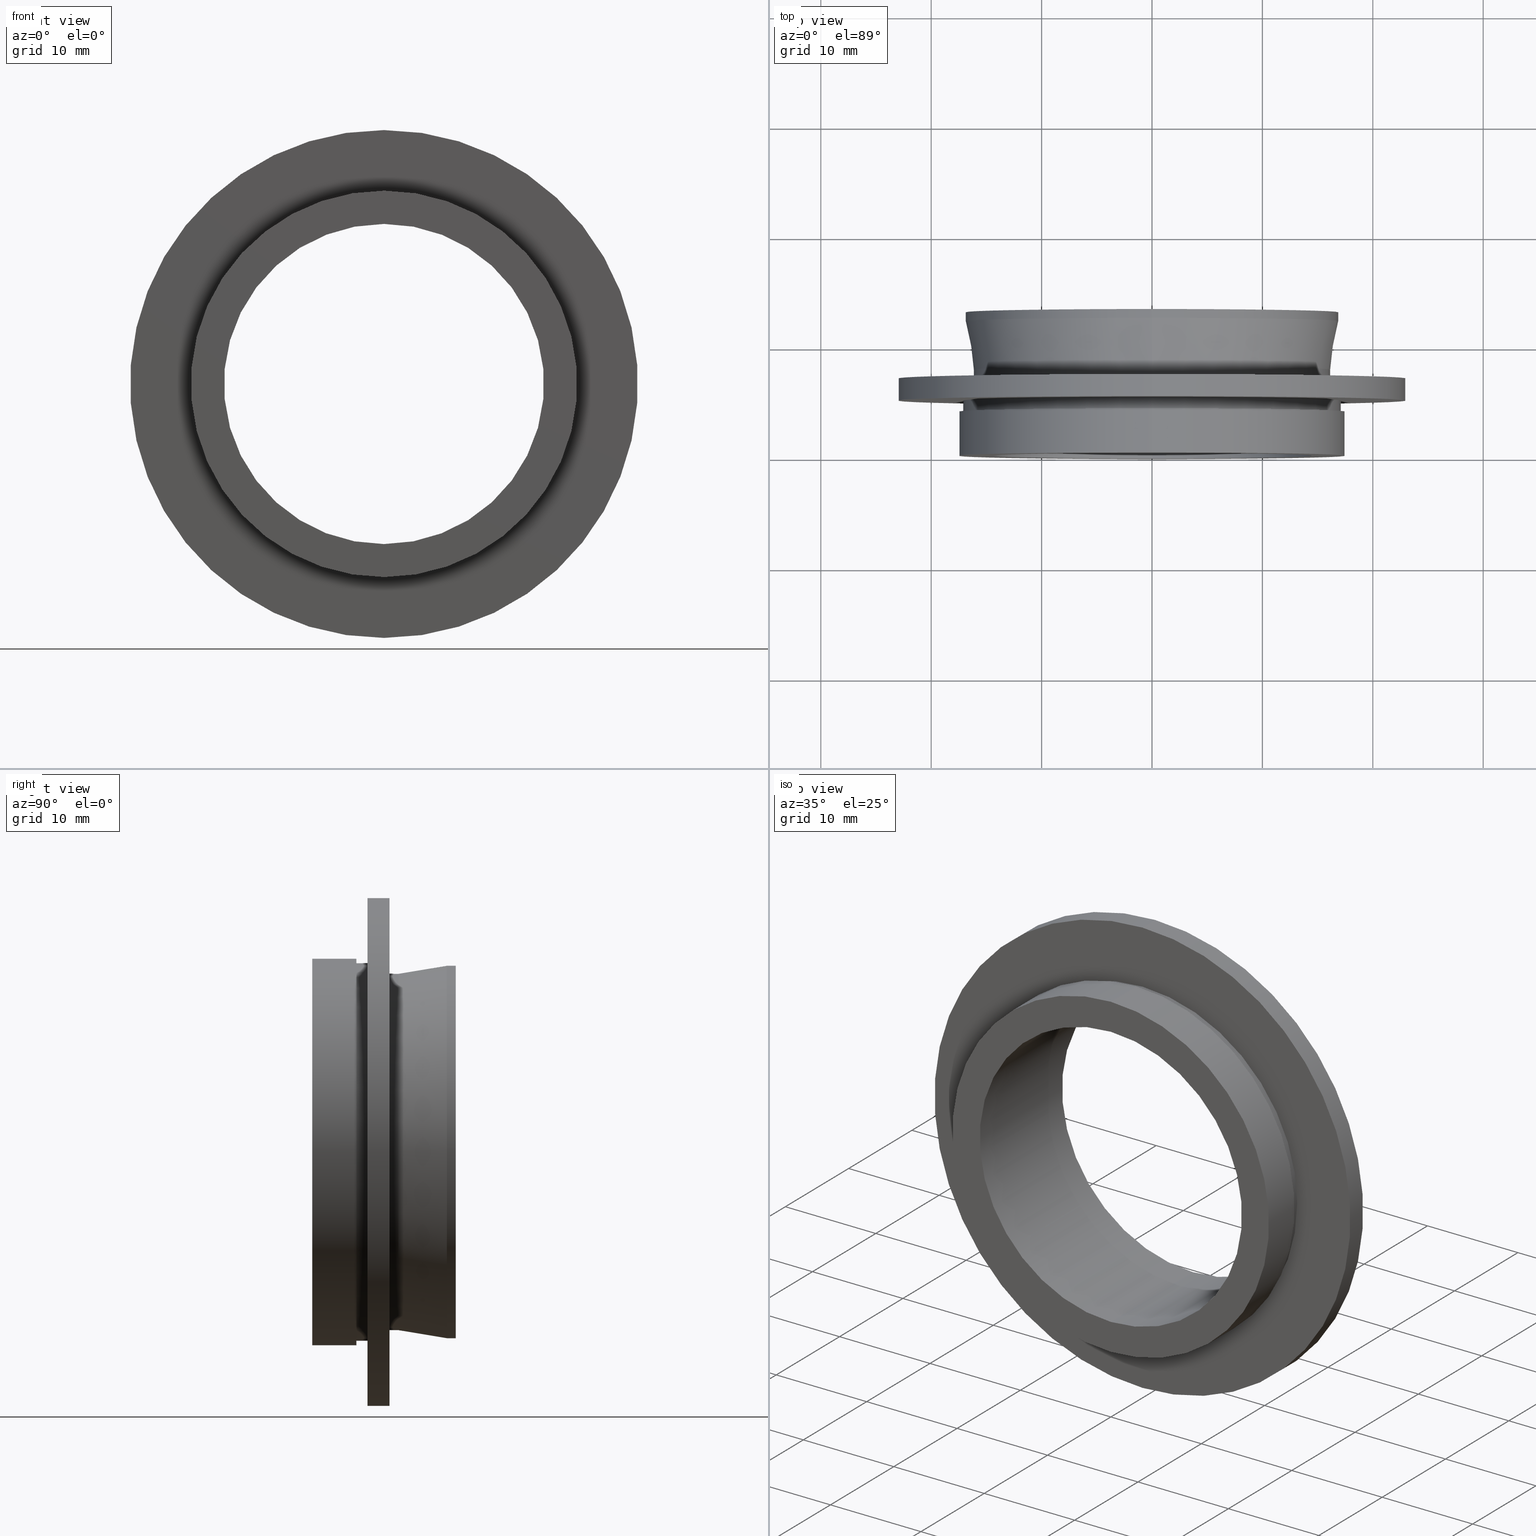
[diagram: canonical four-view strip — front | top / right | iso, engineering-drawing reading convention]
A machine part, canonical four-view strip (front | top / right | iso — engineering-drawing reading convention). The complete STEP part file that produces these views, byte-faithful:
ISO-10303-21;
HEADER;
FILE_DESCRIPTION (( 'STEP AP203' ),
    '1' );
FILE_NAME ('510010.STEP',
    '2019-09-29T08:11:34',
    ( '' ),
    ( '' ),
    'SwSTEP 2.0',
    'SolidWorks 2016',
    '' );
FILE_SCHEMA (( 'CONFIG_CONTROL_DESIGN' ));
ENDSEC;

DATA;
#1 = DIRECTION ( 'NONE',  ( -0.0000000000000000000, -1.000000000000000000, -0.0000000000000000000 ) ) ;
#2 = CC_DESIGN_PERSON_AND_ORGANIZATION_ASSIGNMENT ( #123, #324, ( #606 ) ) ;
#3 = CALENDAR_DATE ( 2019, 29, 9 ) ;
#4 = CARTESIAN_POINT ( 'NONE',  ( 2.094146026541974000E-015, 0.0000000000000000000, 17.10000000000000100 ) ) ;
#5 = FACE_BOUND ( 'NONE', #437, .T. ) ;
#6 = VECTOR ( 'NONE', #599, 1000.000000000000000 ) ;
#7 = CARTESIAN_POINT ( 'NONE',  ( 0.0000000000000000000, 0.0000000000000000000, 0.0000000000000000000 ) ) ;
#8 = ORIENTED_EDGE ( 'NONE', *, *, #64, .F. ) ;
#9 = CARTESIAN_POINT ( 'NONE',  ( 0.0000000000000000000, 13.00000000000000000, -14.49999999999999800 ) ) ;
#10 = AXIS2_PLACEMENT_3D ( 'NONE', #488, #79, #645 ) ;
#11 = CARTESIAN_POINT ( 'NONE',  ( 0.0000000000000000000, 7.799999999999998900, 0.0000000000000000000 ) ) ;
#12 = DIRECTION ( 'NONE',  ( 0.0000000000000000000, 0.0000000000000000000, 1.000000000000000000 ) ) ;
#13 = DIRECTION ( 'NONE',  ( -0.0000000000000000000, -1.000000000000000000, -0.0000000000000000000 ) ) ;
#14 = PERSON_AND_ORGANIZATION ( #153, #297 ) ;
#15 = FACE_BOUND ( 'NONE', #609, .T. ) ;
#16 = VERTEX_POINT ( 'NONE', #9 ) ;
#17 = ORIENTED_EDGE ( 'NONE', *, *, #64, .T. ) ;
#18 = PERSON_AND_ORGANIZATION_ROLE ( 'classification_officer' ) ;
#19 = CARTESIAN_POINT ( 'NONE',  ( 1.975967610424255000E-015, 6.999999999999998200, 16.13500000000000500 ) ) ;
#20 = ADVANCED_FACE ( 'NONE', ( #329 ), #107, .T. ) ;
#21 = DIRECTION ( 'NONE',  ( 1.000000000000000000, 0.0000000000000000000, 0.0000000000000000000 ) ) ;
#22 = ADVANCED_FACE ( 'NONE', ( #349 ), #448, .T. ) ;
#23 = AXIS2_PLACEMENT_3D ( 'NONE', #327, #277, #279 ) ;
#24 = CARTESIAN_POINT ( 'NONE',  ( 0.0000000000000000000, 0.0000000000000000000, 0.0000000000000000000 ) ) ;
#25 = CALENDAR_DATE ( 2019, 29, 9 ) ;
#26 = LINE ( 'NONE', #561, #70 ) ;
#27 = DIRECTION ( 'NONE',  ( -0.0000000000000000000, -1.000000000000000000, -0.0000000000000000000 ) ) ;
#28 = ORIENTED_EDGE ( 'NONE', *, *, #476, .F. ) ;
#29 = ADVANCED_FACE ( 'NONE', ( #321 ), #587, .T. ) ;
#30 = CC_DESIGN_PERSON_AND_ORGANIZATION_ASSIGNMENT ( #52, #589, ( #534 ) ) ;
#31 = AXIS2_PLACEMENT_3D ( 'NONE', #266, #631, #159 ) ;
#32 = DIRECTION ( 'NONE',  ( 0.0000000000000000000, 0.0000000000000000000, -1.000000000000000000 ) ) ;
#33 = VECTOR ( 'NONE', #1, 1000.000000000000000 ) ;
#34 = EDGE_LOOP ( 'NONE', ( #492, #298, #557, #583 ) ) ;
#35 = ORIENTED_EDGE ( 'NONE', *, *, #304, .F. ) ;
#36 = DIRECTION ( 'NONE',  ( -0.0000000000000000000, -1.000000000000000000, -0.0000000000000000000 ) ) ;
#37 = PERSON_AND_ORGANIZATION ( #153, #297 ) ;
#38 = CC_DESIGN_DATE_AND_TIME_ASSIGNMENT ( #151, #540, ( #620 ) ) ;
#39 = DIRECTION ( 'NONE',  ( 0.0000000000000000000, 0.0000000000000000000, -1.000000000000000000 ) ) ;
#40 = ORIENTED_EDGE ( 'NONE', *, *, #549, .F. ) ;
#41 = ORIENTED_EDGE ( 'NONE', *, *, #342, .F. ) ;
#42 = DIRECTION ( 'NONE',  ( -0.0000000000000000000, -1.000000000000000000, -0.0000000000000000000 ) ) ;
#43 = EDGE_CURVE ( 'NONE', #48, #163, #475, .T. ) ;
#44 = CARTESIAN_POINT ( 'NONE',  ( 2.816687638038912400E-015, 4.999999999999997300, 23.00000000000000000 ) ) ;
#45 = PLANE ( 'NONE',  #174 ) ;
#46 = EDGE_CURVE ( 'NONE', #118, #142, #406, .T. ) ;
#47 = FACE_OUTER_BOUND ( 'NONE', #528, .T. ) ;
#48 = VERTEX_POINT ( 'NONE', #352 ) ;
#49 = DIRECTION ( 'NONE',  ( -0.0000000000000000000, -1.000000000000000000, -0.0000000000000000000 ) ) ;
#50 = VERTEX_POINT ( 'NONE', #220 ) ;
#51 = DIRECTION ( 'NONE',  ( 0.0000000000000000000, 0.0000000000000000000, -1.000000000000000000 ) ) ;
#52 = PERSON_AND_ORGANIZATION ( #153, #297 ) ;
#53 = DIRECTION ( 'NONE',  ( 0.0000000000000000000, 0.0000000000000000000, -1.000000000000000000 ) ) ;
#54 = EDGE_LOOP ( 'NONE', ( #477, #109, #615, #193 ) ) ;
#55 = AXIS2_PLACEMENT_3D ( 'NONE', #591, #633, #219 ) ;
#56 = ORIENTED_EDGE ( 'NONE', *, *, #304, .T. ) ;
#57 = DIRECTION ( 'NONE',  ( -0.0000000000000000000, -1.000000000000000000, -0.0000000000000000000 ) ) ;
#58 = CC_DESIGN_PERSON_AND_ORGANIZATION_ASSIGNMENT ( #37, #621, ( #148 ) ) ;
#59 = DIRECTION ( 'NONE',  ( 0.0000000000000000000, -1.000000000000000000, -0.0000000000000000000 ) ) ;
#60 = CIRCLE ( 'NONE', #267, 17.10000000000000100 ) ;
#61 = DATE_TIME_ROLE ( 'creation_date' ) ;
#62 = ORIENTED_EDGE ( 'NONE', *, *, #652, .F. ) ;
#63 = ORIENTED_EDGE ( 'NONE', *, *, #198, .T. ) ;
#64 = EDGE_CURVE ( 'NONE', #348, #50, #622, .T. ) ;
#65 = PLANE ( 'NONE',  #372 ) ;
#66 = ADVANCED_FACE ( 'NONE', ( #233 ), #336, .T. ) ;
#67 = DIRECTION ( 'NONE',  ( 0.0000000000000000000, 0.0000000000000000000, -1.000000000000000000 ) ) ;
#68 = CALENDAR_DATE ( 2019, 29, 9 ) ;
#69 = CARTESIAN_POINT ( 'NONE',  ( 0.0000000000000000000, 3.999999999999997300, 0.0000000000000000000 ) ) ;
#70 = VECTOR ( 'NONE', #291, 1000.000000000000000 ) ;
#71 = ORIENTED_EDGE ( 'NONE', *, *, #263, .T. ) ;
#72 = PRODUCT_RELATED_PRODUCT_CATEGORY ( 'detail', '', ( #148 ) ) ;
#73 = AXIS2_PLACEMENT_3D ( 'NONE', #533, #637, #365 ) ;
#74 = CARTESIAN_POINT ( 'NONE',  ( 0.0000000000000000000, -3.508329487826542300E-015, 0.0000000000000000000 ) ) ;
#75 = CARTESIAN_POINT ( 'NONE',  ( 0.0000000000000000000, 3.999999999999998200, -17.10000000000000100 ) ) ;
#76 = EDGE_LOOP ( 'NONE', ( #41, #126 ) ) ;
#77 = EDGE_CURVE ( 'NONE', #355, #605, #442, .T. ) ;
#78 = ADVANCED_FACE ( 'NONE', ( #656, #90 ), #122, .F. ) ;
#79 = DIRECTION ( 'NONE',  ( 0.0000000000000000000, 1.000000000000000000, 0.0000000000000000000 ) ) ;
#80 = PERSON_AND_ORGANIZATION ( #153, #297 ) ;
#81 = CIRCLE ( 'NONE', #485, 17.50000000000000000 ) ;
#82 = LINE ( 'NONE', #288, #516 ) ;
#83 = ORIENTED_EDGE ( 'NONE', *, *, #431, .T. ) ;
#84 = CARTESIAN_POINT ( 'NONE',  ( 1.775737858763662000E-015, 0.0000000000000000000, 14.49999999999999800 ) ) ;
#85 = AXIS2_PLACEMENT_3D ( 'NONE', #173, #370, #420 ) ;
#86 = CARTESIAN_POINT ( 'NONE',  ( -16.13500000000000500, 6.999999999999997300, 0.0000000000000000000 ) ) ;
#87 = DIRECTION ( 'NONE',  ( 0.0000000000000000000, 1.000000000000000000, 0.0000000000000000000 ) ) ;
#88 = AXIS2_PLACEMENT_3D ( 'NONE', #578, #414, #21 ) ;
#89 = CARTESIAN_POINT ( 'NONE',  ( 0.0000000000000000000, 7.799999999999998900, 16.13500000000001200 ) ) ;
#90 = FACE_OUTER_BOUND ( 'NONE', #102, .T. ) ;
#91 = EDGE_LOOP ( 'NONE', ( #415, #56, #83, #598 ) ) ;
#92 = CARTESIAN_POINT ( 'NONE',  ( 0.0000000000000000000, 0.0000000000000000000, 0.0000000000000000000 ) ) ;
#93 = DESIGN_CONTEXT ( 'detailed design', #307, 'design' ) ;
#94 = EDGE_CURVE ( 'NONE', #666, #118, #640, .T. ) ;
#95 = DIRECTION ( 'NONE',  ( 0.0000000000000000000, 0.0000000000000000000, -1.000000000000000000 ) ) ;
#96 = DIRECTION ( 'NONE',  ( -0.0000000000000000000, -1.000000000000000000, -0.0000000000000000000 ) ) ;
#97 = COORDINATED_UNIVERSAL_TIME_OFFSET ( 8, 0, .AHEAD. ) ;
#98 = EDGE_CURVE ( 'NONE', #286, #16, #482, .T. ) ;
#99 = FACE_OUTER_BOUND ( 'NONE', #54, .T. ) ;
#100 = FACE_OUTER_BOUND ( 'NONE', #614, .T. ) ;
#101 = DIRECTION ( 'NONE',  ( 0.0000000000000000000, 0.0000000000000000000, -1.000000000000000000 ) ) ;
#102 = EDGE_LOOP ( 'NONE', ( #623, #384 ) ) ;
#103 = CARTESIAN_POINT ( 'NONE',  ( 1.775737858763662400E-015, -1.589908991977631700E-015, 14.50000000000000200 ) ) ;
#104 = APPROVAL ( #487, 'δָ��' ) ;
#105 = DIRECTION ( 'NONE',  ( 0.0000000000000000000, 1.000000000000000000, 0.0000000000000000000 ) ) ;
#106 = CYLINDRICAL_SURFACE ( 'NONE', #195, 14.49999999999999800 ) ;
#107 = CONICAL_SURFACE ( 'NONE', #616, 16.86499999999999800, 0.1644114862470237900 ) ;
#108 = ORIENTED_EDGE ( 'NONE', *, *, #245, .F. ) ;
#109 = ORIENTED_EDGE ( 'NONE', *, *, #619, .T. ) ;
#110 = DIRECTION ( 'NONE',  ( 0.0000000000000000000, 0.0000000000000000000, -1.000000000000000000 ) ) ;
#111 = DIRECTION ( 'NONE',  ( 1.000000000000000000, 0.0000000000000000000, 0.0000000000000000000 ) ) ;
#112 = COORDINATED_UNIVERSAL_TIME_OFFSET ( 8, 0, .AHEAD. ) ;
#113 = LOCAL_TIME ( 16, 11, 34.00000000000000000, #145 ) ;
#114 = FACE_OUTER_BOUND ( 'NONE', #548, .T. ) ;
#115 = CARTESIAN_POINT ( 'NONE',  ( 0.0000000000000000000, -3.508329487826542300E-015, -17.50000000000000000 ) ) ;
#116 = FACE_BOUND ( 'NONE', #181, .T. ) ;
#117 = DIRECTION ( 'NONE',  ( -0.0000000000000000000, -1.000000000000000000, -0.0000000000000000000 ) ) ;
#118 = VERTEX_POINT ( 'NONE', #588 ) ;
#119 = PRODUCT_DEFINITION_FORMATION_WITH_SPECIFIED_SOURCE ( '�κ�', '', #253, .NOT_KNOWN. ) ;
#120 = APPLICATION_CONTEXT ( 'configuration controlled 3d designs of mechanical parts and assemblies' ) ;
#121 = AXIS2_PLACEMENT_3D ( 'NONE', #74, #430, #322 ) ;
#122 = PLANE ( 'NONE',  #55 ) ;
#123 = PERSON_AND_ORGANIZATION ( #153, #297 ) ;
#124 = DIRECTION ( 'NONE',  ( -0.0000000000000000000, -1.000000000000000000, -0.0000000000000000000 ) ) ;
#125 = FACE_OUTER_BOUND ( 'NONE', #303, .T. ) ;
#126 = ORIENTED_EDGE ( 'NONE', *, *, #392, .F. ) ;
#127 = CC_DESIGN_PERSON_AND_ORGANIZATION_ASSIGNMENT ( #80, #629, ( #119 ) ) ;
#128 = APPROVAL_ROLE ( '' ) ;
#129 = CARTESIAN_POINT ( 'NONE',  ( 1.775737858763662000E-015, 13.00000000000000000, 14.49999999999999800 ) ) ;
#130 = APPROVAL_ROLE ( '' ) ;
#131 = AXIS2_PLACEMENT_3D ( 'NONE', #479, #535, #317 ) ;
#132 = LINE ( 'NONE', #202, #382 ) ;
#133 = DIRECTION ( 'NONE',  ( 2.004401237060916700E-017, 0.9865148492742908900, -0.1636717818114136200 ) ) ;
#134 = ORIENTED_EDGE ( 'NONE', *, *, #166, .F. ) ;
#135 = DIRECTION ( 'NONE',  ( -0.0000000000000000000, -1.000000000000000000, -0.0000000000000000000 ) ) ;
#136 = DIRECTION ( 'NONE',  ( -0.0000000000000000000, -1.000000000000000000, -0.0000000000000000000 ) ) ;
#137 = PRODUCT_DEFINITION_SHAPE ( 'NONE', 'NONE',  #534 ) ;
#138 = CARTESIAN_POINT ( 'NONE',  ( 0.0000000000000000000, 6.999999999999998200, 0.0000000000000000000 ) ) ;
#139 = LOCAL_TIME ( 16, 11, 34.00000000000000000, #654 ) ;
#140 = CYLINDRICAL_SURFACE ( 'NONE', #427, 16.13500000000000900 ) ;
#141 = CIRCLE ( 'NONE', #152, 17.10000000000000100 ) ;
#142 = VERTEX_POINT ( 'NONE', #541 ) ;
#143 = EDGE_CURVE ( 'NONE', #634, #163, #178, .T. ) ;
#144 = CARTESIAN_POINT ( 'NONE',  ( 0.0000000000000000000, 12.19999999999999900, 0.0000000000000000000 ) ) ;
#145 = COORDINATED_UNIVERSAL_TIME_OFFSET ( 8, 0, .AHEAD. ) ;
#146 = CIRCLE ( 'NONE', #596, 17.10000000000000100 ) ;
#147 = ORIENTED_EDGE ( 'NONE', *, *, #43, .T. ) ;
#148 = PRODUCT ( '510010', '510010', '', ( #262 ) ) ;
#149 = CARTESIAN_POINT ( 'NONE',  ( 0.0000000000000000000, 0.0000000000000000000, -16.13500000000000900 ) ) ;
#150 = DIRECTION ( 'NONE',  ( -0.0000000000000000000, -1.000000000000000000, -0.0000000000000000000 ) ) ;
#151 = DATE_AND_TIME ( #3, #139 ) ;
#152 = AXIS2_PLACEMENT_3D ( 'NONE', #593, #124, #424 ) ;
#153 = PERSON ( 'δָ��', 'δָ��', 'δָ��', ('δָ��'), ('δָ��'), ('δָ��') ) ;
#154 = CYLINDRICAL_SURFACE ( 'NONE', #469, 17.10000000000000100 ) ;
#155 = ORIENTED_EDGE ( 'NONE', *, *, #431, .F. ) ;
#156 = DIRECTION ( 'NONE',  ( -0.0000000000000000000, -1.000000000000000000, -0.0000000000000000000 ) ) ;
#157 = CC_DESIGN_PERSON_AND_ORGANIZATION_ASSIGNMENT ( #311, #520, ( #253 ) ) ;
#158 = CARTESIAN_POINT ( 'NONE',  ( 0.0000000000000000000, 0.0000000000000000000, 0.0000000000000000000 ) ) ;
#159 = DIRECTION ( 'NONE',  ( 0.0000000000000000000, 0.0000000000000000000, -1.000000000000000000 ) ) ;
#160 = APPROVAL_DATE_TIME ( #231, #191 ) ;
#161 = FACE_OUTER_BOUND ( 'NONE', #208, .T. ) ;
#162 = EDGE_CURVE ( 'NONE', #375, #642, #341, .T. ) ;
#163 = VERTEX_POINT ( 'NONE', #169 ) ;
#164 = MECHANICAL_CONTEXT ( 'NONE', #360, 'mechanical' ) ;
#165 = DIRECTION ( 'NONE',  ( -0.0000000000000000000, -1.000000000000000000, -0.0000000000000000000 ) ) ;
#166 = EDGE_CURVE ( 'NONE', #142, #224, #141, .T. ) ;
#167 = DIRECTION ( 'NONE',  ( 0.0000000000000000000, 0.0000000000000000000, -1.000000000000000000 ) ) ;
#168 = APPLICATION_PROTOCOL_DEFINITION ( 'international standard', 'config_control_design', 1994, #360 ) ;
#169 = CARTESIAN_POINT ( 'NONE',  ( 0.0000000000000000000, 12.19999999999999900, -16.86499999999999800 ) ) ;
#170 = EDGE_CURVE ( 'NONE', #657, #458, #425, .T. ) ;
#171 = EDGE_LOOP ( 'NONE', ( #271, #71, #252, #108 ) ) ;
#172 = ORIENTED_EDGE ( 'NONE', *, *, #333, .F. ) ;
#173 = CARTESIAN_POINT ( 'NONE',  ( 0.0000000000000000000, 13.00000000000000000, 0.0000000000000000000 ) ) ;
#174 = AXIS2_PLACEMENT_3D ( 'NONE', #86, #565, #503 ) ;
#175 = DIRECTION ( 'NONE',  ( -0.0000000000000000000, -1.000000000000000000, -0.0000000000000000000 ) ) ;
#176 = APPROVAL_ROLE ( '' ) ;
#177 = APPROVAL_PERSON_ORGANIZATION ( #301, #191, #625 ) ;
#178 = CIRCLE ( 'NONE', #131, 16.86499999999999800 ) ;
#179 = ORIENTED_EDGE ( 'NONE', *, *, #77, .F. ) ;
#180 = EDGE_CURVE ( 'NONE', #499, #357, #312, .T. ) ;
#181 = EDGE_LOOP ( 'NONE', ( #443, #287 ) ) ;
#182 = DIRECTION ( 'NONE',  ( -0.0000000000000000000, -1.000000000000000000, -0.0000000000000000000 ) ) ;
#183 = DIRECTION ( 'NONE',  ( -0.0000000000000000000, -1.000000000000000000, -0.0000000000000000000 ) ) ;
#184 = DATE_AND_TIME ( #525, #319 ) ;
#185 = CIRCLE ( 'NONE', #31, 16.13500000000001200 ) ;
#186 = CARTESIAN_POINT ( 'NONE',  ( 0.0000000000000000000, 12.19999999999999900, 16.86499999999999800 ) ) ;
#187 = VECTOR ( 'NONE', #290, 1000.000000000000100 ) ;
#188 = ORIENTED_EDGE ( 'NONE', *, *, #143, .T. ) ;
#189 = AXIS2_PLACEMENT_3D ( 'NONE', #69, #417, #428 ) ;
#190 = DIRECTION ( 'NONE',  ( 0.0000000000000000000, 0.0000000000000000000, -1.000000000000000000 ) ) ;
#191 = APPROVAL ( #524, 'δָ��' ) ;
#192 = VECTOR ( 'NONE', #57, 1000.000000000000000 ) ;
#193 = ORIENTED_EDGE ( 'NONE', *, *, #356, .F. ) ;
#194 = VERTEX_POINT ( 'NONE', #19 ) ;
#195 = AXIS2_PLACEMENT_3D ( 'NONE', #92, #500, #244 ) ;
#196 = CARTESIAN_POINT ( 'NONE',  ( 0.0000000000000000000, 13.00000000000000000, 0.0000000000000000000 ) ) ;
#197 = CARTESIAN_POINT ( 'NONE',  ( 2.065366826762010800E-015, 12.19999999999999900, 16.86499999999999800 ) ) ;
#198 = EDGE_CURVE ( 'NONE', #50, #348, #538, .T. ) ;
#199 = LOCAL_TIME ( 16, 11, 34.00000000000000000, #639 ) ;
#200 = ORIENTED_EDGE ( 'NONE', *, *, #590, .F. ) ;
#201 = CARTESIAN_POINT ( 'NONE',  ( 0.0000000000000000000, 0.0000000000000000000, -17.50000000000000000 ) ) ;
#202 = CARTESIAN_POINT ( 'NONE',  ( 0.0000000000000000000, 0.0000000000000000000, -14.49999999999999800 ) ) ;
#203 = DIRECTION ( 'NONE',  ( 0.0000000000000000000, 0.0000000000000000000, -1.000000000000000000 ) ) ;
#204 = DIRECTION ( 'NONE',  ( -0.0000000000000000000, -1.000000000000000000, -0.0000000000000000000 ) ) ;
#205 = AXIS2_PLACEMENT_3D ( 'NONE', #471, #117, #167 ) ;
#206 = FACE_OUTER_BOUND ( 'NONE', #299, .T. ) ;
#207 = ORIENTED_EDGE ( 'NONE', *, *, #552, .T. ) ;
#208 = EDGE_LOOP ( 'NONE', ( #226, #436, #147, #407 ) ) ;
#209 = CARTESIAN_POINT ( 'NONE',  ( 0.0000000000000000000, 12.19999999999999900, 0.0000000000000000000 ) ) ;
#210 = DIRECTION ( 'NONE',  ( 0.0000000000000000000, 0.0000000000000000000, -1.000000000000000000 ) ) ;
#211 = CALENDAR_DATE ( 2019, 29, 9 ) ;
#212 = ADVANCED_FACE ( 'NONE', ( #116, #206 ), #223, .F. ) ;
#213 = CIRCLE ( 'NONE', #539, 14.50000000000000000 ) ;
#214 = LINE ( 'NONE', #186, #187 ) ;
#215 = ORIENTED_EDGE ( 'NONE', *, *, #278, .T. ) ;
#216 = APPLICATION_PROTOCOL_DEFINITION ( 'international standard', 'config_control_design', 1994, #120 ) ;
#217 = PERSON_AND_ORGANIZATION_ROLE ( 'classification_officer' ) ;
#218 = AXIS2_PLACEMENT_3D ( 'NONE', #646, #550, #32 ) ;
#219 = DIRECTION ( 'NONE',  ( 0.0000000000000000000, -0.0000000000000000000, 1.000000000000000000 ) ) ;
#220 = CARTESIAN_POINT ( 'NONE',  ( 2.143131898507868200E-015, 3.999999999999997300, 17.50000000000000000 ) ) ;
#221 = APPROVAL_DATE_TIME ( #282, #493 ) ;
#222 = ORIENTED_EDGE ( 'NONE', *, *, #526, .T. ) ;
#223 = PLANE ( 'NONE',  #10 ) ;
#224 = VERTEX_POINT ( 'NONE', #75 ) ;
#225 = CC_DESIGN_DATE_AND_TIME_ASSIGNMENT ( #354, #483, ( #534 ) ) ;
#226 = ORIENTED_EDGE ( 'NONE', *, *, #438, .F. ) ;
#227 = APPROVAL_STATUS ( 'not_yet_approved' ) ;
#228 = DIRECTION ( 'NONE',  ( 0.0000000000000000000, 0.0000000000000000000, -1.000000000000000000 ) ) ;
#229 = AXIS2_PLACEMENT_3D ( 'NONE', #196, #42, #190 ) ;
#230 = CARTESIAN_POINT ( 'NONE',  ( 2.065366826762010800E-015, 12.19999999999999900, -16.86499999999999800 ) ) ;
#231 = DATE_AND_TIME ( #248, #434 ) ;
#232 = FACE_OUTER_BOUND ( 'NONE', #76, .T. ) ;
#233 = FACE_OUTER_BOUND ( 'NONE', #34, .T. ) ;
#234 = EDGE_CURVE ( 'NONE', #224, #142, #60, .T. ) ;
#235 = ORIENTED_EDGE ( 'NONE', *, *, #526, .F. ) ;
#236 = CARTESIAN_POINT ( 'NONE',  ( 0.0000000000000000000, -1.589908991977631700E-015, -14.50000000000000000 ) ) ;
#237 = DIRECTION ( 'NONE',  ( 0.0000000000000000000, 0.0000000000000000000, -1.000000000000000000 ) ) ;
#238 = CONICAL_SURFACE ( 'NONE', #496, 16.86499999999999800, 0.1644114862470237900 ) ;
#239 = DIRECTION ( 'NONE',  ( -0.0000000000000000000, -1.000000000000000000, -0.0000000000000000000 ) ) ;
#240 = LINE ( 'NONE', #84, #390 ) ;
#241 = ORIENTED_EDGE ( 'NONE', *, *, #283, .T. ) ;
#242 = EDGE_LOOP ( 'NONE', ( #179, #155 ) ) ;
#243 = AXIS2_PLACEMENT_3D ( 'NONE', #158, #521, #579 ) ;
#244 = DIRECTION ( 'NONE',  ( 0.0000000000000000000, 0.0000000000000000000, -1.000000000000000000 ) ) ;
#245 = EDGE_CURVE ( 'NONE', #463, #634, #214, .T. ) ;
#246 = CALENDAR_DATE ( 2019, 29, 9 ) ;
#247 = CARTESIAN_POINT ( 'NONE',  ( 1.975967610424255000E-015, 0.0000000000000000000, 16.13500000000000900 ) ) ;
#248 = CALENDAR_DATE ( 2019, 29, 9 ) ;
#249 = FACE_OUTER_BOUND ( 'NONE', #376, .T. ) ;
#250 = VERTEX_POINT ( 'NONE', #380 ) ;
#251 = CARTESIAN_POINT ( 'NONE',  ( 0.0000000000000000000, 13.00000000000000000, 0.0000000000000000000 ) ) ;
#252 = ORIENTED_EDGE ( 'NONE', *, *, #308, .T. ) ;
#253 = PRODUCT ( '510010', '510010', '', ( #164 ) ) ;
#254 = CARTESIAN_POINT ( 'NONE',  ( 0.0000000000000000000, 0.0000000000000000000, 0.0000000000000000000 ) ) ;
#255 = AXIS2_PLACEMENT_3D ( 'NONE', #495, #339, #95 ) ;
#256 = PERSON_AND_ORGANIZATION ( #153, #297 ) ;
#257 = DIRECTION ( 'NONE',  ( -0.0000000000000000000, -1.000000000000000000, -0.0000000000000000000 ) ) ;
#258 = CIRCLE ( 'NONE', #229, 16.86499999999999800 ) ;
#259 = FACE_OUTER_BOUND ( 'NONE', #573, .T. ) ;
#260 = ORIENTED_EDGE ( 'NONE', *, *, #180, .F. ) ;
#261 = ORIENTED_EDGE ( 'NONE', *, *, #511, .F. ) ;
#262 = MECHANICAL_CONTEXT ( 'NONE', #120, 'mechanical' ) ;
#263 = EDGE_CURVE ( 'NONE', #665, #163, #608, .T. ) ;
#264 = PRODUCT_DEFINITION ( 'δ֪', '', #119, #422 ) ;
#265 = APPLICATION_CONTEXT ( 'configuration controlled 3d designs of mechanical parts and assemblies' ) ;
#266 = CARTESIAN_POINT ( 'NONE',  ( 0.0000000000000000000, 7.799999999999998900, 0.0000000000000000000 ) ) ;
#267 = AXIS2_PLACEMENT_3D ( 'NONE', #439, #182, #601 ) ;
#268 = LOCAL_TIME ( 16, 11, 34.00000000000000000, #397 ) ;
#269 = CYLINDRICAL_SURFACE ( 'NONE', #399, 14.49999999999999800 ) ;
#270 = APPROVAL_STATUS ( 'not_yet_approved' ) ;
#271 = ORIENTED_EDGE ( 'NONE', *, *, #644, .F. ) ;
#272 = APPLICATION_PROTOCOL_DEFINITION ( 'international standard', 'config_control_design', 1994, #265 ) ;
#273 = PERSON_AND_ORGANIZATION ( #153, #297 ) ;
#274 = FACE_OUTER_BOUND ( 'NONE', #450, .T. ) ;
#275 = CC_DESIGN_APPROVAL ( #568, ( #456 ) ) ;
#276 = LINE ( 'NONE', #648, #6 ) ;
#277 = DIRECTION ( 'NONE',  ( -0.0000000000000000000, -1.000000000000000000, -0.0000000000000000000 ) ) ;
#278 = EDGE_CURVE ( 'NONE', #666, #224, #82, .T. ) ;
#279 = DIRECTION ( 'NONE',  ( 0.0000000000000000000, 0.0000000000000000000, -1.000000000000000000 ) ) ;
#280 = APPROVAL_DATE_TIME ( #309, #592 ) ;
#281 = ADVANCED_BREP_SHAPE_REPRESENTATION ( '510010', ( #446, #88 ), #465 ) ;
#282 = DATE_AND_TIME ( #211, #364 ) ;
#283 = EDGE_CURVE ( 'NONE', #499, #458, #276, .T. ) ;
#284 = CIRCLE ( 'NONE', #560, 14.49999999999999800 ) ;
#285 = DIRECTION ( 'NONE',  ( -0.0000000000000000000, -1.000000000000000000, -0.0000000000000000000 ) ) ;
#286 = VERTEX_POINT ( 'NONE', #129 ) ;
#287 = ORIENTED_EDGE ( 'NONE', *, *, #379, .F. ) ;
#288 = CARTESIAN_POINT ( 'NONE',  ( 0.0000000000000000000, 0.0000000000000000000, -17.10000000000000100 ) ) ;
#289 = CC_DESIGN_DATE_AND_TIME_ASSIGNMENT ( #612, #470, ( #456 ) ) ;
#290 = DIRECTION ( 'NONE',  ( 0.0000000000000000000, 0.9865148492742908900, 0.1636717818114136200 ) ) ;
#291 = DIRECTION ( 'NONE',  ( -0.0000000000000000000, -1.000000000000000000, -0.0000000000000000000 ) ) ;
#292 = PERSON_AND_ORGANIZATION ( #153, #297 ) ;
#293 = AXIS2_PLACEMENT_3D ( 'NONE', #543, #135, #228 ) ;
#294 = EDGE_LOOP ( 'NONE', ( #17, #566, #28, #582 ) ) ;
#295 = DIRECTION ( 'NONE',  ( -0.0000000000000000000, -1.000000000000000000, -0.0000000000000000000 ) ) ;
#296 = CC_DESIGN_APPROVAL ( #493, ( #119 ) ) ;
#297 = ORGANIZATION ( 'δָ��', 'δָ��', '' ) ;
#298 = ORIENTED_EDGE ( 'NONE', *, *, #438, .T. ) ;
#299 = EDGE_LOOP ( 'NONE', ( #650, #222 ) ) ;
#300 = UNCERTAINTY_MEASURE_WITH_UNIT (LENGTH_MEASURE( 1.000000000000000100E-005 ), #359, 'distance_accuracy_value', 'NONE');
#301 = PERSON_AND_ORGANIZATION ( #153, #297 ) ;
#302 = ORIENTED_EDGE ( 'NONE', *, *, #162, .F. ) ;
#303 = EDGE_LOOP ( 'NONE', ( #200, #63, #207, #302 ) ) ;
#304 = EDGE_CURVE ( 'NONE', #286, #605, #240, .T. ) ;
#305 = CC_DESIGN_APPROVAL ( #191, ( #264 ) ) ;
#306 = CARTESIAN_POINT ( 'NONE',  ( -17.10000000000000100, 3.999999999999998200, 0.0000000000000000000 ) ) ;
#307 = APPLICATION_CONTEXT ( 'configuration controlled 3d designs of mechanical parts and assemblies' ) ;
#308 = EDGE_CURVE ( 'NONE', #163, #634, #649, .T. ) ;
#309 = DATE_AND_TIME ( #246, #396 ) ;
#310 = PERSON_AND_ORGANIZATION_ROLE ( 'creator' ) ;
#311 = PERSON_AND_ORGANIZATION ( #153, #297 ) ;
#312 = CIRCLE ( 'NONE', #73, 23.00000000000000000 ) ;
#313 = VERTEX_POINT ( 'NONE', #544 ) ;
#314 = EDGE_LOOP ( 'NONE', ( #400, #491, #518, #188 ) ) ;
#315 = SECURITY_CLASSIFICATION_LEVEL ( 'unclassified' ) ;
#316 = CARTESIAN_POINT ( 'NONE',  ( 0.0000000000000000000, 4.999999999999998200, -17.10000000000000100 ) ) ;
#317 = DIRECTION ( 'NONE',  ( 0.0000000000000000000, 0.0000000000000000000, -1.000000000000000000 ) ) ;
#318 = CC_DESIGN_PERSON_AND_ORGANIZATION_ASSIGNMENT ( #562, #310, ( #264 ) ) ;
#319 = LOCAL_TIME ( 16, 11, 34.00000000000000000, #97 ) ;
#320 = FACE_OUTER_BOUND ( 'NONE', #171, .T. ) ;
#321 = FACE_OUTER_BOUND ( 'NONE', #294, .T. ) ;
#322 = DIRECTION ( 'NONE',  ( 0.0000000000000000000, 0.0000000000000000000, -1.000000000000000000 ) ) ;
#323 = ORIENTED_EDGE ( 'NONE', *, *, #46, .F. ) ;
#324 = PERSON_AND_ORGANIZATION_ROLE ( 'creator' ) ;
#325 = AXIS2_PLACEMENT_3D ( 'NONE', #651, #285, #335 ) ;
#326 = CARTESIAN_POINT ( 'NONE',  ( 0.0000000000000000000, 4.999999999999997300, 0.0000000000000000000 ) ) ;
#327 = CARTESIAN_POINT ( 'NONE',  ( 0.0000000000000000000, -1.589908991977631700E-015, 0.0000000000000000000 ) ) ;
#328 = DATE_AND_TIME ( #462, #113 ) ;
#329 = FACE_OUTER_BOUND ( 'NONE', #314, .T. ) ;
#330 = ORIENTED_EDGE ( 'NONE', *, *, #166, .T. ) ;
#331 = AXIS2_PLACEMENT_3D ( 'NONE', #306, #510, #101 ) ;
#332 = APPROVAL_PERSON_ORGANIZATION ( #472, #358, #128 ) ;
#333 = EDGE_CURVE ( 'NONE', #357, #499, #457, .T. ) ;
#334 = CIRCLE ( 'NONE', #361, 16.13500000000001200 ) ;
#335 = DIRECTION ( 'NONE',  ( 0.0000000000000000000, 0.0000000000000000000, -1.000000000000000000 ) ) ;
#336 = CYLINDRICAL_SURFACE ( 'NONE', #576, 16.86499999999999800 ) ;
#337 = ORIENTED_EDGE ( 'NONE', *, *, #46, .T. ) ;
#338 = CC_DESIGN_DATE_AND_TIME_ASSIGNMENT ( #328, #61, ( #264 ) ) ;
#339 = DIRECTION ( 'NONE',  ( -0.0000000000000000000, -1.000000000000000000, -0.0000000000000000000 ) ) ;
#340 = CALENDAR_DATE ( 2019, 29, 9 ) ;
#341 = CIRCLE ( 'NONE', #121, 17.50000000000000000 ) ;
#342 = EDGE_CURVE ( 'NONE', #48, #250, #366, .T. ) ;
#343 = EDGE_LOOP ( 'NONE', ( #530, #241, #556, #261 ) ) ;
#344 = ADVANCED_FACE ( 'NONE', ( #125 ), #632, .T. ) ;
#345 = DIRECTION ( 'NONE',  ( -0.0000000000000000000, -1.000000000000000000, -0.0000000000000000000 ) ) ;
#346 = DIRECTION ( 'NONE',  ( -0.0000000000000000000, -1.000000000000000000, -0.0000000000000000000 ) ) ;
#347 = CYLINDRICAL_SURFACE ( 'NONE', #255, 16.13500000000000900 ) ;
#348 = VERTEX_POINT ( 'NONE', #551 ) ;
#349 = FACE_OUTER_BOUND ( 'NONE', #343, .T. ) ;
#350 = PLANE ( 'NONE',  #331 ) ;
#351 = DIRECTION ( 'NONE',  ( 0.0000000000000000000, 0.0000000000000000000, -1.000000000000000000 ) ) ;
#352 = CARTESIAN_POINT ( 'NONE',  ( 0.0000000000000000000, 13.00000000000000000, -16.86499999999999800 ) ) ;
#353 = AXIS2_PLACEMENT_3D ( 'NONE', #138, #555, #653 ) ;
#354 = DATE_AND_TIME ( #441, #585 ) ;
#355 = VERTEX_POINT ( 'NONE', #236 ) ;
#356 = EDGE_CURVE ( 'NONE', #194, #313, #571, .T. ) ;
#357 = VERTEX_POINT ( 'NONE', #486 ) ;
#358 = APPROVAL ( #227, 'δָ��' ) ;
#359 =( LENGTH_UNIT ( ) NAMED_UNIT ( * ) SI_UNIT ( .MILLI., .METRE. ) );
#360 = APPLICATION_CONTEXT ( 'configuration controlled 3d designs of mechanical parts and assemblies' ) ;
#361 = AXIS2_PLACEMENT_3D ( 'NONE', #11, #467, #210 ) ;
#362 = ADVANCED_FACE ( 'NONE', ( #259 ), #106, .F. ) ;
#363 = APPROVAL_STATUS ( 'not_yet_approved' ) ;
#364 = LOCAL_TIME ( 16, 11, 34.00000000000000000, #412 ) ;
#365 = DIRECTION ( 'NONE',  ( 0.0000000000000000000, 0.0000000000000000000, -1.000000000000000000 ) ) ;
#366 = CIRCLE ( 'NONE', #447, 16.86499999999999800 ) ;
#367 = ORIENTED_EDGE ( 'NONE', *, *, #522, .F. ) ;
#368 = CARTESIAN_POINT ( 'NONE',  ( 2.020667218593133100E-015, 7.799999999999998900, -16.13500000000001200 ) ) ;
#369 = AXIS2_PLACEMENT_3D ( 'NONE', #7, #345, #351 ) ;
#370 = DIRECTION ( 'NONE',  ( -0.0000000000000000000, -1.000000000000000000, -0.0000000000000000000 ) ) ;
#371 = APPLICATION_PROTOCOL_DEFINITION ( 'international standard', 'config_control_design', 1994, #307 ) ;
#372 = AXIS2_PLACEMENT_3D ( 'NONE', #410, #59, #110 ) ;
#373 = ORIENTED_EDGE ( 'NONE', *, *, #586, .T. ) ;
#374 = ADVANCED_FACE ( 'NONE', ( #100 ), #347, .T. ) ;
#375 = VERTEX_POINT ( 'NONE', #661 ) ;
#376 = EDGE_LOOP ( 'NONE', ( #323, #564, #215, #134 ) ) ;
#377 = AXIS2_PLACEMENT_3D ( 'NONE', #326, #27, #67 ) ;
#378 = CARTESIAN_POINT ( 'NONE',  ( 0.0000000000000000000, 6.999999999999997300, 0.0000000000000000000 ) ) ;
#379 = EDGE_CURVE ( 'NONE', #118, #666, #146, .T. ) ;
#380 = CARTESIAN_POINT ( 'NONE',  ( 2.065366826762010800E-015, 13.00000000000000000, 16.86499999999999800 ) ) ;
#381 = APPROVAL_DATE_TIME ( #184, #568 ) ;
#382 = VECTOR ( 'NONE', #567, 1000.000000000000000 ) ;
#383 = ORIENTED_EDGE ( 'NONE', *, *, #180, .T. ) ;
#384 = ORIENTED_EDGE ( 'NONE', *, *, #162, .T. ) ;
#385 = CC_DESIGN_PERSON_AND_ORGANIZATION_ASSIGNMENT ( #14, #532, ( #119 ) ) ;
#386 = DIRECTION ( 'NONE',  ( 0.0000000000000000000, 0.0000000000000000000, -1.000000000000000000 ) ) ;
#387 = APPROVAL_DATE_TIME ( #536, #104 ) ;
#388 = AXIS2_PLACEMENT_3D ( 'NONE', #378, #36, #386 ) ;
#389 = FACE_BOUND ( 'NONE', #519, .T. ) ;
#390 = VECTOR ( 'NONE', #553, 1000.000000000000000 ) ;
#391 = ORIENTED_EDGE ( 'NONE', *, *, #511, .T. ) ;
#392 = EDGE_CURVE ( 'NONE', #250, #48, #258, .T. ) ;
#393 = CC_DESIGN_APPROVAL ( #592, ( #620 ) ) ;
#394 = DIRECTION ( 'NONE',  ( 0.0000000000000000000, 0.0000000000000000000, 1.000000000000000000 ) ) ;
#395 = ADVANCED_FACE ( 'NONE', ( #99 ), #140, .T. ) ;
#396 = LOCAL_TIME ( 16, 11, 34.00000000000000000, #112 ) ;
#397 = COORDINATED_UNIVERSAL_TIME_OFFSET ( 8, 0, .AHEAD. ) ;
#398 = VECTOR ( 'NONE', #257, 1000.000000000000000 ) ;
#399 = AXIS2_PLACEMENT_3D ( 'NONE', #618, #156, #512 ) ;
#400 = ORIENTED_EDGE ( 'NONE', *, *, #263, .F. ) ;
#401 = CARTESIAN_POINT ( 'NONE',  ( 0.0000000000000000000, 0.0000000000000000000, 0.0000000000000000000 ) ) ;
#402 = AXIS2_PLACEMENT_3D ( 'NONE', #474, #165, #531 ) ;
#403 = LOCAL_TIME ( 16, 11, 34.00000000000000000, #554 ) ;
#404 = CARTESIAN_POINT ( 'NONE',  ( 0.0000000000000000000, -3.508329487826542300E-015, 0.0000000000000000000 ) ) ;
#405 = CIRCLE ( 'NONE', #627, 23.00000000000000000 ) ;
#406 = LINE ( 'NONE', #4, #192 ) ;
#407 = ORIENTED_EDGE ( 'NONE', *, *, #143, .F. ) ;
#408 = CC_DESIGN_SECURITY_CLASSIFICATION ( #456, ( #119 ) ) ;
#409 = DIRECTION ( 'NONE',  ( 0.0000000000000000000, 0.0000000000000000000, -1.000000000000000000 ) ) ;
#410 = CARTESIAN_POINT ( 'NONE',  ( -14.49999999999999800, 13.00000000000000000, 0.0000000000000000000 ) ) ;
#411 = APPROVAL_ROLE ( '' ) ;
#412 = COORDINATED_UNIVERSAL_TIME_OFFSET ( 8, 0, .AHEAD. ) ;
#413 = LINE ( 'NONE', #452, #664 ) ;
#414 = DIRECTION ( 'NONE',  ( 0.0000000000000000000, 0.0000000000000000000, 1.000000000000000000 ) ) ;
#415 = ORIENTED_EDGE ( 'NONE', *, *, #98, .F. ) ;
#416 = APPROVAL_ROLE ( '' ) ;
#417 = DIRECTION ( 'NONE',  ( -0.0000000000000000000, -1.000000000000000000, -0.0000000000000000000 ) ) ;
#418 = ADVANCED_FACE ( 'NONE', ( #320 ), #238, .T. ) ;
#419 = CARTESIAN_POINT ( 'NONE',  ( 0.0000000000000000000, 0.0000000000000000000, 0.0000000000000000000 ) ) ;
#420 = DIRECTION ( 'NONE',  ( 0.0000000000000000000, 0.0000000000000000000, -1.000000000000000000 ) ) ;
#421 = AXIS2_PLACEMENT_3D ( 'NONE', #419, #12, #111 ) ;
#422 = DESIGN_CONTEXT ( 'detailed design', #265, 'design' ) ;
#423 = PERSON_AND_ORGANIZATION ( #153, #297 ) ;
#424 = DIRECTION ( 'NONE',  ( 0.0000000000000000000, 0.0000000000000000000, -1.000000000000000000 ) ) ;
#425 = CIRCLE ( 'NONE', #377, 23.00000000000000000 ) ;
#426 = ORIENTED_EDGE ( 'NONE', *, *, #278, .F. ) ;
#427 = AXIS2_PLACEMENT_3D ( 'NONE', #559, #239, #39 ) ;
#428 = DIRECTION ( 'NONE',  ( 0.0000000000000000000, 0.0000000000000000000, -1.000000000000000000 ) ) ;
#429 = SECURITY_CLASSIFICATION_LEVEL ( 'unclassified' ) ;
#430 = DIRECTION ( 'NONE',  ( -0.0000000000000000000, -1.000000000000000000, -0.0000000000000000000 ) ) ;
#431 = EDGE_CURVE ( 'NONE', #605, #355, #213, .T. ) ;
#432 = ADVANCED_FACE ( 'NONE', ( #514, #15 ), #45, .F. ) ;
#433 = CC_DESIGN_PERSON_AND_ORGANIZATION_ASSIGNMENT ( #545, #18, ( #456 ) ) ;
#434 = LOCAL_TIME ( 16, 11, 34.00000000000000000, #580 ) ;
#435 = CYLINDRICAL_SURFACE ( 'NONE', #505, 17.10000000000000100 ) ;
#436 = ORIENTED_EDGE ( 'NONE', *, *, #392, .T. ) ;
#437 = EDGE_LOOP ( 'NONE', ( #464, #330 ) ) ;
#438 = EDGE_CURVE ( 'NONE', #250, #634, #26, .T. ) ;
#439 = CARTESIAN_POINT ( 'NONE',  ( 0.0000000000000000000, 3.999999999999998200, 0.0000000000000000000 ) ) ;
#440 = CARTESIAN_POINT ( 'NONE',  ( 0.0000000000000000000, 13.00000000000000000, 0.0000000000000000000 ) ) ;
#441 = CALENDAR_DATE ( 2019, 29, 9 ) ;
#442 = CIRCLE ( 'NONE', #23, 14.50000000000000000 ) ;
#443 = ORIENTED_EDGE ( 'NONE', *, *, #94, .F. ) ;
#444 = PRODUCT_RELATED_PRODUCT_CATEGORY ( 'detail', '', ( #253 ) ) ;
#445 = CARTESIAN_POINT ( 'NONE',  ( 0.0000000000000000000, 4.999999999999998200, 0.0000000000000000000 ) ) ;
#446 = MANIFOLD_SOLID_BREP ( '��ת1', #509 ) ;
#447 = AXIS2_PLACEMENT_3D ( 'NONE', #440, #136, #494 ) ;
#448 = CYLINDRICAL_SURFACE ( 'NONE', #243, 23.00000000000000000 ) ;
#449 = ORIENTED_EDGE ( 'NONE', *, *, #459, .T. ) ;
#450 = EDGE_LOOP ( 'NONE', ( #8, #658 ) ) ;
#451 = DIRECTION ( 'NONE',  ( 0.0000000000000000000, 0.0000000000000000000, -1.000000000000000000 ) ) ;
#452 = CARTESIAN_POINT ( 'NONE',  ( 0.0000000000000000000, 0.0000000000000000000, -23.00000000000000000 ) ) ;
#453 = DIRECTION ( 'NONE',  ( -0.0000000000000000000, -1.000000000000000000, -0.0000000000000000000 ) ) ;
#454 = APPROVAL_PERSON_ORGANIZATION ( #662, #568, #416 ) ;
#455 = LINE ( 'NONE', #149, #398 ) ;
#456 = SECURITY_CLASSIFICATION ( '', '', #315 ) ;
#457 = CIRCLE ( 'NONE', #388, 23.00000000000000000 ) ;
#458 = VERTEX_POINT ( 'NONE', #44 ) ;
#459 = EDGE_CURVE ( 'NONE', #463, #194, #490, .T. ) ;
#460 = CARTESIAN_POINT ( 'NONE',  ( 0.0000000000000000000, 4.999999999999997300, 0.0000000000000000000 ) ) ;
#461 = DIRECTION ( 'NONE',  ( 0.0000000000000000000, 0.0000000000000000000, -1.000000000000000000 ) ) ;
#462 = CALENDAR_DATE ( 2019, 29, 9 ) ;
#463 = VERTEX_POINT ( 'NONE', #89 ) ;
#464 = ORIENTED_EDGE ( 'NONE', *, *, #234, .T. ) ;
#465 =( GEOMETRIC_REPRESENTATION_CONTEXT ( 3 ) GLOBAL_UNCERTAINTY_ASSIGNED_CONTEXT ( ( #300 ) ) GLOBAL_UNIT_ASSIGNED_CONTEXT ( ( #359, #468, #628 ) ) REPRESENTATION_CONTEXT ( 'NONE', 'WORKASPACE' ) );
#466 = ORIENTED_EDGE ( 'NONE', *, *, #522, .T. ) ;
#467 = DIRECTION ( 'NONE',  ( -0.0000000000000000000, -1.000000000000000000, -0.0000000000000000000 ) ) ;
#468 =( NAMED_UNIT ( * ) PLANE_ANGLE_UNIT ( ) SI_UNIT ( $, .RADIAN. ) );
#469 = AXIS2_PLACEMENT_3D ( 'NONE', #254, #150, #53 ) ;
#470 = DATE_TIME_ROLE ( 'classification_date' ) ;
#471 = CARTESIAN_POINT ( 'NONE',  ( 0.0000000000000000000, 4.999999999999998200, 0.0000000000000000000 ) ) ;
#472 = PERSON_AND_ORGANIZATION ( #153, #297 ) ;
#473 = VECTOR ( 'NONE', #577, 1000.000000000000000 ) ;
#474 = CARTESIAN_POINT ( 'NONE',  ( 0.0000000000000000000, 6.999999999999998200, 0.0000000000000000000 ) ) ;
#475 = LINE ( 'NONE', #630, #604 ) ;
#476 = EDGE_CURVE ( 'NONE', #642, #375, #81, .T. ) ;
#477 = ORIENTED_EDGE ( 'NONE', *, *, #459, .F. ) ;
#478 = ADVANCED_FACE ( 'NONE', ( #161 ), #563, .T. ) ;
#479 = CARTESIAN_POINT ( 'NONE',  ( 0.0000000000000000000, 12.19999999999999900, 0.0000000000000000000 ) ) ;
#480 = CC_DESIGN_APPROVAL ( #358, ( #534 ) ) ;
#481 = COORDINATED_UNIVERSAL_TIME_OFFSET ( 8, 0, .AHEAD. ) ;
#482 = CIRCLE ( 'NONE', #85, 14.49999999999999800 ) ;
#483 = DATE_TIME_ROLE ( 'creation_date' ) ;
#484 = ORIENTED_EDGE ( 'NONE', *, *, #356, .T. ) ;
#485 = AXIS2_PLACEMENT_3D ( 'NONE', #404, #204, #409 ) ;
#486 = CARTESIAN_POINT ( 'NONE',  ( 0.0000000000000000000, 6.999999999999997300, -23.00000000000000000 ) ) ;
#487 = APPROVAL_STATUS ( 'not_yet_approved' ) ;
#488 = CARTESIAN_POINT ( 'NONE',  ( -23.00000000000000000, 4.999999999999997300, 0.0000000000000000000 ) ) ;
#489 = PERSON_AND_ORGANIZATION ( #153, #297 ) ;
#490 = LINE ( 'NONE', #247, #527 ) ;
#491 = ORIENTED_EDGE ( 'NONE', *, *, #619, .F. ) ;
#492 = ORIENTED_EDGE ( 'NONE', *, *, #342, .T. ) ;
#493 = APPROVAL ( #270, 'δָ��' ) ;
#494 = DIRECTION ( 'NONE',  ( 0.0000000000000000000, 0.0000000000000000000, -1.000000000000000000 ) ) ;
#495 = CARTESIAN_POINT ( 'NONE',  ( 0.0000000000000000000, 0.0000000000000000000, 0.0000000000000000000 ) ) ;
#496 = AXIS2_PLACEMENT_3D ( 'NONE', #144, #87, #394 ) ;
#497 = DATE_AND_TIME ( #68, #199 ) ;
#498 = ORIENTED_EDGE ( 'NONE', *, *, #644, .T. ) ;
#499 = VERTEX_POINT ( 'NONE', #570 ) ;
#500 = DIRECTION ( 'NONE',  ( -0.0000000000000000000, -1.000000000000000000, -0.0000000000000000000 ) ) ;
#501 = EDGE_LOOP ( 'NONE', ( #172, #260 ) ) ;
#502 = CC_DESIGN_SECURITY_CLASSIFICATION ( #620, ( #606 ) ) ;
#503 = DIRECTION ( 'NONE',  ( 0.0000000000000000000, 0.0000000000000000000, -1.000000000000000000 ) ) ;
#504 = CARTESIAN_POINT ( 'NONE',  ( 0.0000000000000000000, -1.589908991977631700E-015, 0.0000000000000000000 ) ) ;
#505 = AXIS2_PLACEMENT_3D ( 'NONE', #663, #617, #461 ) ;
#506 = CARTESIAN_POINT ( 'NONE',  ( 2.143131898507868200E-015, 0.0000000000000000000, 17.50000000000000000 ) ) ;
#507 = CYLINDRICAL_SURFACE ( 'NONE', #369, 23.00000000000000000 ) ;
#508 = VECTOR ( 'NONE', #133, 1000.000000000000100 ) ;
#509 = CLOSED_SHELL ( 'NONE', ( #29, #643, #22, #374, #418, #66, #584, #78, #362, #659, #478, #20, #395, #432, #610, #212, #600, #529, #344 ) ) ;
#510 = DIRECTION ( 'NONE',  ( 0.0000000000000000000, -1.000000000000000000, -0.0000000000000000000 ) ) ;
#511 = EDGE_CURVE ( 'NONE', #357, #657, #413, .T. ) ;
#512 = DIRECTION ( 'NONE',  ( 0.0000000000000000000, 0.0000000000000000000, -1.000000000000000000 ) ) ;
#513 = APPROVAL_PERSON_ORGANIZATION ( #423, #592, #130 ) ;
#514 = FACE_OUTER_BOUND ( 'NONE', #501, .T. ) ;
#515 = CC_DESIGN_PERSON_AND_ORGANIZATION_ASSIGNMENT ( #273, #638, ( #606 ) ) ;
#516 = VECTOR ( 'NONE', #183, 1000.000000000000000 ) ;
#517 = DIRECTION ( 'NONE',  ( -0.0000000000000000000, -1.000000000000000000, -0.0000000000000000000 ) ) ;
#518 = ORIENTED_EDGE ( 'NONE', *, *, #245, .T. ) ;
#519 = EDGE_LOOP ( 'NONE', ( #466, #624 ) ) ;
#520 = PERSON_AND_ORGANIZATION_ROLE ( 'design_owner' ) ;
#521 = DIRECTION ( 'NONE',  ( -0.0000000000000000000, -1.000000000000000000, -0.0000000000000000000 ) ) ;
#522 = EDGE_CURVE ( 'NONE', #16, #286, #284, .T. ) ;
#523 = CARTESIAN_POINT ( 'NONE',  ( 0.0000000000000000000, 0.0000000000000000000, 0.0000000000000000000 ) ) ;
#524 = APPROVAL_STATUS ( 'not_yet_approved' ) ;
#525 = CALENDAR_DATE ( 2019, 29, 9 ) ;
#526 = EDGE_CURVE ( 'NONE', #458, #657, #405, .T. ) ;
#527 = VECTOR ( 'NONE', #453, 1000.000000000000000 ) ;
#528 = EDGE_LOOP ( 'NONE', ( #641, #383, #391, #235 ) ) ;
#529 = ADVANCED_FACE ( 'NONE', ( #274, #5 ), #350, .F. ) ;
#530 = ORIENTED_EDGE ( 'NONE', *, *, #333, .T. ) ;
#531 = DIRECTION ( 'NONE',  ( 0.0000000000000000000, 0.0000000000000000000, -1.000000000000000000 ) ) ;
#532 = PERSON_AND_ORGANIZATION_ROLE ( 'design_supplier' ) ;
#533 = CARTESIAN_POINT ( 'NONE',  ( 0.0000000000000000000, 6.999999999999997300, 0.0000000000000000000 ) ) ;
#534 = PRODUCT_DEFINITION ( 'δ֪', '', #606, #93 ) ;
#535 = DIRECTION ( 'NONE',  ( -0.0000000000000000000, -1.000000000000000000, -0.0000000000000000000 ) ) ;
#536 = DATE_AND_TIME ( #25, #403 ) ;
#537 = CIRCLE ( 'NONE', #402, 16.13500000000000500 ) ;
#538 = CIRCLE ( 'NONE', #218, 17.50000000000000000 ) ;
#539 = AXIS2_PLACEMENT_3D ( 'NONE', #504, #49, #237 ) ;
#540 = DATE_TIME_ROLE ( 'classification_date' ) ;
#541 = CARTESIAN_POINT ( 'NONE',  ( 2.094146026541974000E-015, 3.999999999999998200, 17.10000000000000100 ) ) ;
#542 = APPROVAL_STATUS ( 'not_yet_approved' ) ;
#543 = CARTESIAN_POINT ( 'NONE',  ( 0.0000000000000000000, 0.0000000000000000000, 0.0000000000000000000 ) ) ;
#544 = CARTESIAN_POINT ( 'NONE',  ( 0.0000000000000000000, 6.999999999999998200, -16.13500000000000500 ) ) ;
#545 = PERSON_AND_ORGANIZATION ( #153, #297 ) ;
#546 = FACE_OUTER_BOUND ( 'NONE', #91, .T. ) ;
#547 = ORIENTED_EDGE ( 'NONE', *, *, #652, .T. ) ;
#548 = EDGE_LOOP ( 'NONE', ( #572, #337, #597, #426 ) ) ;
#549 = EDGE_CURVE ( 'NONE', #665, #313, #455, .T. ) ;
#550 = DIRECTION ( 'NONE',  ( -0.0000000000000000000, -1.000000000000000000, -0.0000000000000000000 ) ) ;
#551 = CARTESIAN_POINT ( 'NONE',  ( 0.0000000000000000000, 3.999999999999997300, -17.50000000000000000 ) ) ;
#552 = EDGE_CURVE ( 'NONE', #348, #642, #613, .T. ) ;
#553 = DIRECTION ( 'NONE',  ( -0.0000000000000000000, -1.000000000000000000, -0.0000000000000000000 ) ) ;
#554 = COORDINATED_UNIVERSAL_TIME_OFFSET ( 8, 0, .AHEAD. ) ;
#555 = DIRECTION ( 'NONE',  ( -0.0000000000000000000, -1.000000000000000000, -0.0000000000000000000 ) ) ;
#556 = ORIENTED_EDGE ( 'NONE', *, *, #170, .F. ) ;
#557 = ORIENTED_EDGE ( 'NONE', *, *, #308, .F. ) ;
#558 = CC_DESIGN_PERSON_AND_ORGANIZATION_ASSIGNMENT ( #292, #217, ( #620 ) ) ;
#559 = CARTESIAN_POINT ( 'NONE',  ( 0.0000000000000000000, 0.0000000000000000000, 0.0000000000000000000 ) ) ;
#560 = AXIS2_PLACEMENT_3D ( 'NONE', #251, #667, #51 ) ;
#561 = CARTESIAN_POINT ( 'NONE',  ( 2.065366826762010800E-015, 0.0000000000000000000, 16.86499999999999800 ) ) ;
#562 = PERSON_AND_ORGANIZATION ( #153, #297 ) ;
#563 = CYLINDRICAL_SURFACE ( 'NONE', #660, 16.86499999999999800 ) ;
#564 = ORIENTED_EDGE ( 'NONE', *, *, #379, .T. ) ;
#565 = DIRECTION ( 'NONE',  ( 0.0000000000000000000, -1.000000000000000000, -0.0000000000000000000 ) ) ;
#566 = ORIENTED_EDGE ( 'NONE', *, *, #590, .T. ) ;
#567 = DIRECTION ( 'NONE',  ( -0.0000000000000000000, -1.000000000000000000, -0.0000000000000000000 ) ) ;
#568 = APPROVAL ( #363, 'δָ��' ) ;
#569 = APPROVAL_PERSON_ORGANIZATION ( #256, #104, #176 ) ;
#570 = CARTESIAN_POINT ( 'NONE',  ( 2.816687638038912400E-015, 6.999999999999997300, 23.00000000000000000 ) ) ;
#571 = CIRCLE ( 'NONE', #353, 16.13500000000000500 ) ;
#572 = ORIENTED_EDGE ( 'NONE', *, *, #94, .T. ) ;
#573 = EDGE_LOOP ( 'NONE', ( #35, #367, #373, #595 ) ) ;
#574 = DIRECTION ( 'NONE',  ( 0.0000000000000000000, 0.0000000000000000000, -1.000000000000000000 ) ) ;
#575 = DIRECTION ( 'NONE',  ( 0.0000000000000000000, 0.0000000000000000000, 1.000000000000000000 ) ) ;
#576 = AXIS2_PLACEMENT_3D ( 'NONE', #24, #175, #635 ) ;
#577 = DIRECTION ( 'NONE',  ( -0.0000000000000000000, -1.000000000000000000, -0.0000000000000000000 ) ) ;
#578 = CARTESIAN_POINT ( 'NONE',  ( 0.0000000000000000000, 0.0000000000000000000, 0.0000000000000000000 ) ) ;
#579 = DIRECTION ( 'NONE',  ( 0.0000000000000000000, 0.0000000000000000000, -1.000000000000000000 ) ) ;
#580 = COORDINATED_UNIVERSAL_TIME_OFFSET ( 8, 0, .AHEAD. ) ;
#581 = CARTESIAN_POINT ( 'NONE',  ( 0.0000000000000000000, 4.999999999999997300, -23.00000000000000000 ) ) ;
#582 = ORIENTED_EDGE ( 'NONE', *, *, #552, .F. ) ;
#583 = ORIENTED_EDGE ( 'NONE', *, *, #43, .F. ) ;
#584 = ADVANCED_FACE ( 'NONE', ( #546 ), #269, .F. ) ;
#585 = LOCAL_TIME ( 16, 11, 34.00000000000000000, #481 ) ;
#586 = EDGE_CURVE ( 'NONE', #16, #355, #132, .T. ) ;
#587 = CYLINDRICAL_SURFACE ( 'NONE', #607, 17.50000000000000000 ) ;
#588 = CARTESIAN_POINT ( 'NONE',  ( 2.094146026541974000E-015, 4.999999999999998200, 17.10000000000000100 ) ) ;
#589 = PERSON_AND_ORGANIZATION_ROLE ( 'creator' ) ;
#590 = EDGE_CURVE ( 'NONE', #50, #375, #603, .T. ) ;
#591 = CARTESIAN_POINT ( 'NONE',  ( -17.50000000000000000, -2.549119239902087000E-015, 0.0000000000000000000 ) ) ;
#592 = APPROVAL ( #542, 'δָ��' ) ;
#593 = CARTESIAN_POINT ( 'NONE',  ( 0.0000000000000000000, 3.999999999999998200, 0.0000000000000000000 ) ) ;
#594 = SHAPE_DEFINITION_REPRESENTATION ( #137, #281 ) ;
#595 = ORIENTED_EDGE ( 'NONE', *, *, #77, .T. ) ;
#596 = AXIS2_PLACEMENT_3D ( 'NONE', #445, #295, #451 ) ;
#597 = ORIENTED_EDGE ( 'NONE', *, *, #234, .F. ) ;
#598 = ORIENTED_EDGE ( 'NONE', *, *, #586, .F. ) ;
#599 = DIRECTION ( 'NONE',  ( -0.0000000000000000000, -1.000000000000000000, -0.0000000000000000000 ) ) ;
#600 = ADVANCED_FACE ( 'NONE', ( #249 ), #154, .T. ) ;
#601 = DIRECTION ( 'NONE',  ( 0.0000000000000000000, 0.0000000000000000000, -1.000000000000000000 ) ) ;
#602 = APPROVAL_DATE_TIME ( #497, #358 ) ;
#603 = LINE ( 'NONE', #506, #33 ) ;
#604 = VECTOR ( 'NONE', #13, 1000.000000000000000 ) ;
#605 = VERTEX_POINT ( 'NONE', #103 ) ;
#606 = PRODUCT_DEFINITION_FORMATION_WITH_SPECIFIED_SOURCE ( '�κ�', '', #148, .NOT_KNOWN. ) ;
#607 = AXIS2_PLACEMENT_3D ( 'NONE', #523, #626, #203 ) ;
#608 = LINE ( 'NONE', #230, #508 ) ;
#609 = EDGE_LOOP ( 'NONE', ( #547, #484 ) ) ;
#610 = ADVANCED_FACE ( 'NONE', ( #47 ), #507, .T. ) ;
#611 = DIRECTION ( 'NONE',  ( 0.0000000000000000000, 0.0000000000000000000, -1.000000000000000000 ) ) ;
#612 = DATE_AND_TIME ( #340, #268 ) ;
#613 = LINE ( 'NONE', #201, #473 ) ;
#614 = EDGE_LOOP ( 'NONE', ( #498, #449, #62, #40 ) ) ;
#615 = ORIENTED_EDGE ( 'NONE', *, *, #549, .T. ) ;
#616 = AXIS2_PLACEMENT_3D ( 'NONE', #209, #105, #575 ) ;
#617 = DIRECTION ( 'NONE',  ( -0.0000000000000000000, -1.000000000000000000, -0.0000000000000000000 ) ) ;
#618 = CARTESIAN_POINT ( 'NONE',  ( 0.0000000000000000000, 0.0000000000000000000, 0.0000000000000000000 ) ) ;
#619 = EDGE_CURVE ( 'NONE', #463, #665, #185, .T. ) ;
#620 = SECURITY_CLASSIFICATION ( '', '', #429 ) ;
#621 = PERSON_AND_ORGANIZATION_ROLE ( 'design_owner' ) ;
#622 = CIRCLE ( 'NONE', #189, 17.50000000000000000 ) ;
#623 = ORIENTED_EDGE ( 'NONE', *, *, #476, .T. ) ;
#624 = ORIENTED_EDGE ( 'NONE', *, *, #98, .T. ) ;
#625 = APPROVAL_ROLE ( '' ) ;
#626 = DIRECTION ( 'NONE',  ( -0.0000000000000000000, -1.000000000000000000, -0.0000000000000000000 ) ) ;
#627 = AXIS2_PLACEMENT_3D ( 'NONE', #460, #517, #611 ) ;
#628 =( NAMED_UNIT ( * ) SI_UNIT ( $, .STERADIAN. ) SOLID_ANGLE_UNIT ( ) );
#629 = PERSON_AND_ORGANIZATION_ROLE ( 'creator' ) ;
#630 = CARTESIAN_POINT ( 'NONE',  ( 0.0000000000000000000, 0.0000000000000000000, -16.86499999999999800 ) ) ;
#631 = DIRECTION ( 'NONE',  ( -0.0000000000000000000, -1.000000000000000000, -0.0000000000000000000 ) ) ;
#632 = CYLINDRICAL_SURFACE ( 'NONE', #293, 17.50000000000000000 ) ;
#633 = DIRECTION ( 'NONE',  ( 0.0000000000000000000, 1.000000000000000000, 0.0000000000000000000 ) ) ;
#634 = VERTEX_POINT ( 'NONE', #197 ) ;
#635 = DIRECTION ( 'NONE',  ( 0.0000000000000000000, 0.0000000000000000000, -1.000000000000000000 ) ) ;
#636 = CC_DESIGN_APPROVAL ( #104, ( #606 ) ) ;
#637 = DIRECTION ( 'NONE',  ( -0.0000000000000000000, -1.000000000000000000, -0.0000000000000000000 ) ) ;
#638 = PERSON_AND_ORGANIZATION_ROLE ( 'design_supplier' ) ;
#639 = COORDINATED_UNIVERSAL_TIME_OFFSET ( 8, 0, .AHEAD. ) ;
#640 = CIRCLE ( 'NONE', #205, 17.10000000000000100 ) ;
#641 = ORIENTED_EDGE ( 'NONE', *, *, #283, .F. ) ;
#642 = VERTEX_POINT ( 'NONE', #115 ) ;
#643 = ADVANCED_FACE ( 'NONE', ( #114 ), #435, .T. ) ;
#644 = EDGE_CURVE ( 'NONE', #665, #463, #334, .T. ) ;
#645 = DIRECTION ( 'NONE',  ( 0.0000000000000000000, -0.0000000000000000000, 1.000000000000000000 ) ) ;
#646 = CARTESIAN_POINT ( 'NONE',  ( 0.0000000000000000000, 3.999999999999997300, 0.0000000000000000000 ) ) ;
#647 = APPROVAL_PERSON_ORGANIZATION ( #489, #493, #411 ) ;
#648 = CARTESIAN_POINT ( 'NONE',  ( 2.816687638038912400E-015, 0.0000000000000000000, 23.00000000000000000 ) ) ;
#649 = CIRCLE ( 'NONE', #325, 16.86499999999999800 ) ;
#650 = ORIENTED_EDGE ( 'NONE', *, *, #170, .T. ) ;
#651 = CARTESIAN_POINT ( 'NONE',  ( 0.0000000000000000000, 12.19999999999999900, 0.0000000000000000000 ) ) ;
#652 = EDGE_CURVE ( 'NONE', #313, #194, #537, .T. ) ;
#653 = DIRECTION ( 'NONE',  ( 0.0000000000000000000, 0.0000000000000000000, -1.000000000000000000 ) ) ;
#654 = COORDINATED_UNIVERSAL_TIME_OFFSET ( 8, 0, .AHEAD. ) ;
#655 = PRODUCT_DEFINITION_SHAPE ( 'NONE', 'NONE',  #264 ) ;
#656 = FACE_BOUND ( 'NONE', #242, .T. ) ;
#657 = VERTEX_POINT ( 'NONE', #581 ) ;
#658 = ORIENTED_EDGE ( 'NONE', *, *, #198, .F. ) ;
#659 = ADVANCED_FACE ( 'NONE', ( #232, #389 ), #65, .F. ) ;
#660 = AXIS2_PLACEMENT_3D ( 'NONE', #401, #96, #574 ) ;
#661 = CARTESIAN_POINT ( 'NONE',  ( 2.143131898507868200E-015, -3.508329487826542300E-015, 17.50000000000000000 ) ) ;
#662 = PERSON_AND_ORGANIZATION ( #153, #297 ) ;
#663 = CARTESIAN_POINT ( 'NONE',  ( 0.0000000000000000000, 0.0000000000000000000, 0.0000000000000000000 ) ) ;
#664 = VECTOR ( 'NONE', #346, 1000.000000000000000 ) ;
#665 = VERTEX_POINT ( 'NONE', #368 ) ;
#666 = VERTEX_POINT ( 'NONE', #316 ) ;
#667 = DIRECTION ( 'NONE',  ( -0.0000000000000000000, -1.000000000000000000, -0.0000000000000000000 ) ) ;
ENDSEC;
END-ISO-10303-21;
